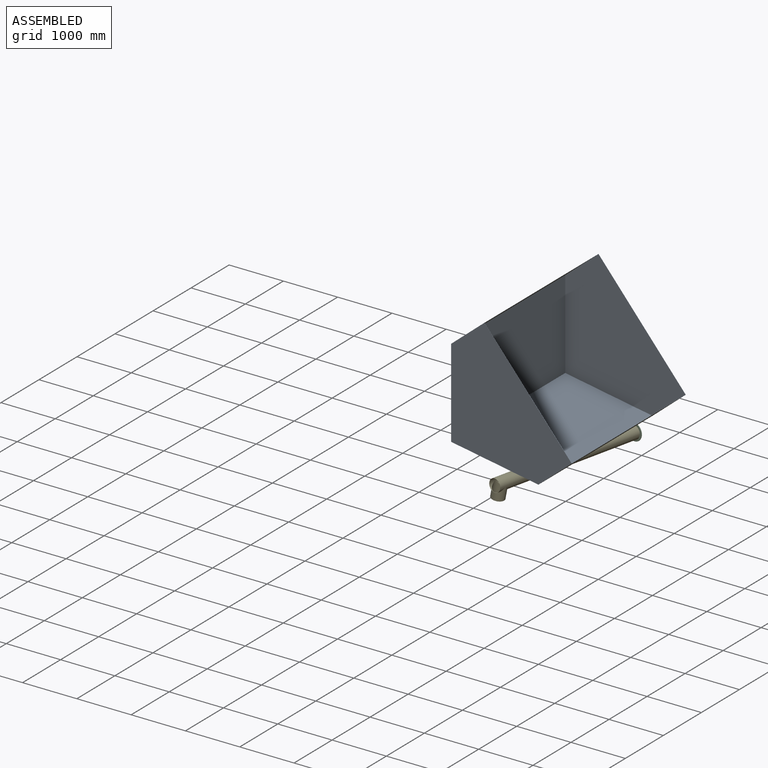
[diagram: assembled view]
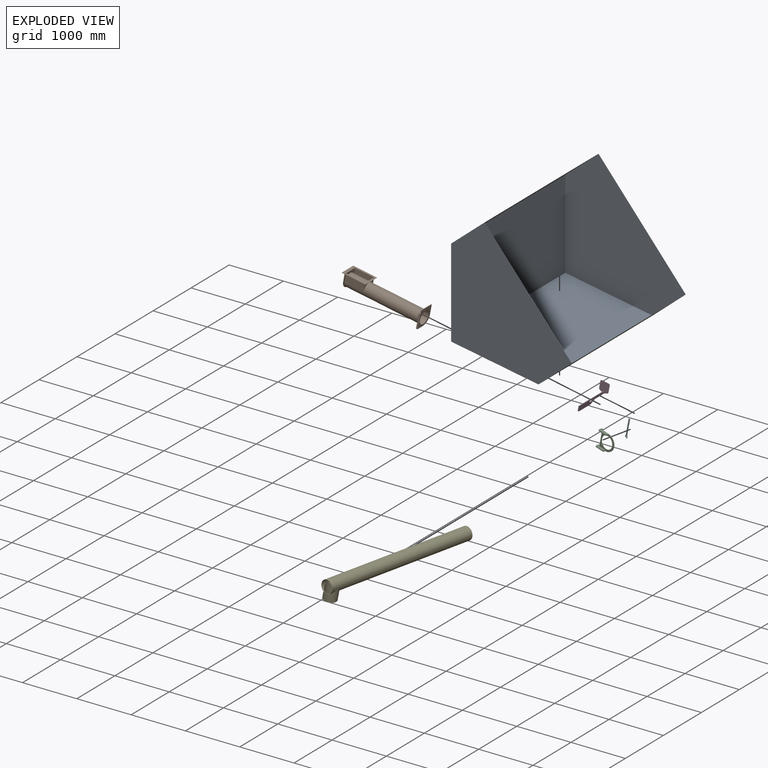
[diagram: exploded view]
GUIDED TOUR — MATED ASSEMBLY (Onshape document 6aad0ecdc5a5da9b1339add7, AutoMate assembly 6aad0ecdc5a5da9b1339add7_7d3fe150dd48b6e4a774384d_7fe9ff65d1b6e1fdf8e013a1_default)

This assembly has 6 components, labeled P0..P5 below (a component is one placed occurrence of a part; the same part can appear more than once), held together by 6 mates. A mate is a constraint between two components; its type names the relative motion it leaves free:
  BALL — leaves all rotation about the listed point free (a ball joint),
  FASTENED — locks the two components together rigidly (no relative motion),
  PARALLEL — keeps the two listed directions parallel,
  REVOLUTE — leaves rotation about the listed axis free (a hinge).
Axis/direction vectors are unit vectors and 'through' points are millimeter coordinates, both in the assembly's world frame.

MATES
  1. FASTENED "Fastened 1": P4 <-> P2, direction (0.171, 0.985, -0.033) through (939.24, -1520.71, -1131.61) mm
  2. PARALLEL "Parallel 1": P1 <-> P0, direction (0.000, 1.000, 0.000) through (802.22, -1192.31, -1018.96) mm
  3. BALL "Ball 1": P0 <-> P1, direction (1.000, 0.000, 0.000) through (-570.71, -1194.31, -685.99) mm
  4. FASTENED "Fastened 3": P3 <-> P1, direction (0.982, 0.000, -0.187) through (810.84, -1437.31, -941.70) mm
  5. FASTENED "Fastened 2": P5 <-> P2, direction (0.187, 0.000, 0.982) through (820.29, -1494.31, -956.23) mm
  6. REVOLUTE "Revolute 3": P2 <-> P1, axis (0.187, 0.000, 0.982) through (820.29, -1494.31, -956.23) mm

ASSEMBLY ORDER
  1. P5 — the base component [order verified]
  2. P2 [order verified]
  3. P3 [order verified]
  4. P0 [order verified]
  5. P1 [order verified]
  6. P4 [order verified]
Order-tag legend:
  [order verified] — this step's position reverses a verified removal order: the component was checked to insert without passing through the ones already placed.

Of the 6 components, 2 carry the full construction recipe — the FeatureScript program that regenerates the part's solid from scratch; the rest are supplied as boundary geometry only.
Each toured component is shown spotlighted twice — in the assembled view, then in the exploded view, where a leader line traces a displaced component back to its assembled socket (saturated green if recipe-attached, orange if geometry-only; every other component desaturated gray) — followed by its recipe or geometry summary and the mates that hold it.
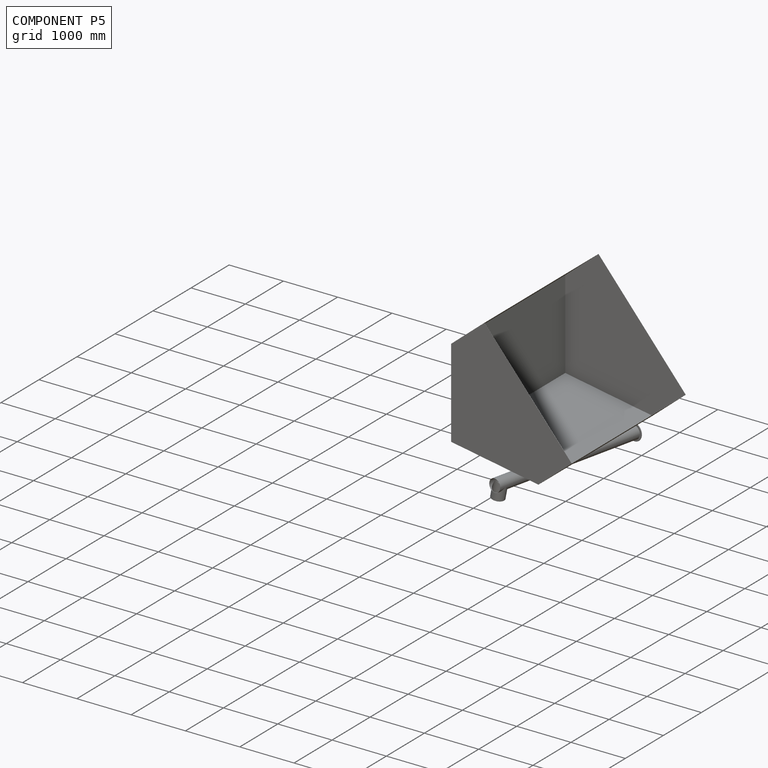
[diagram: component P5 — assembled]
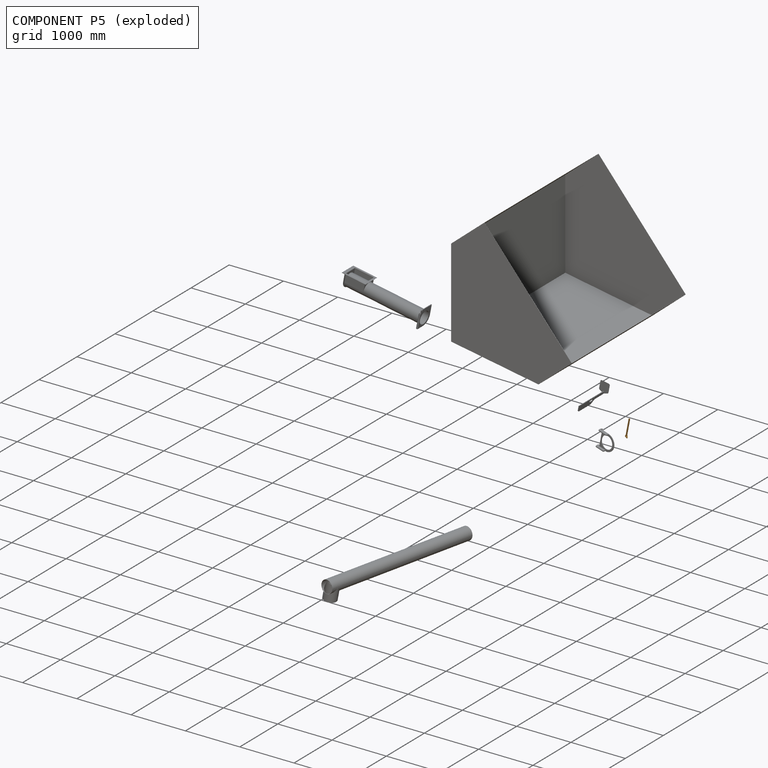
[diagram: component P5 — exploded]
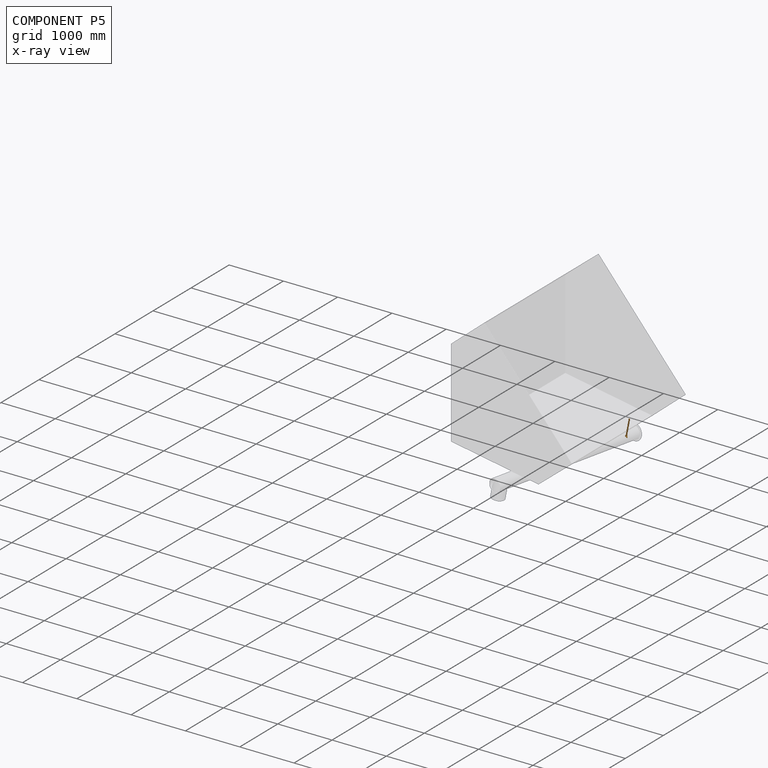
[diagram: component P5 — x-ray view]
COMPONENT P5 — geometry summary (no construction recipe available for this part):
  bounding box: 315.0 x 72.0 x 57.0 mm
  B-rep topology: 1 solid, 11 faces, 42 edges
  volume: 160328 mm^3 (12% of its bounding box)
Held by: FASTENED mate "Fastened 2" to P2.
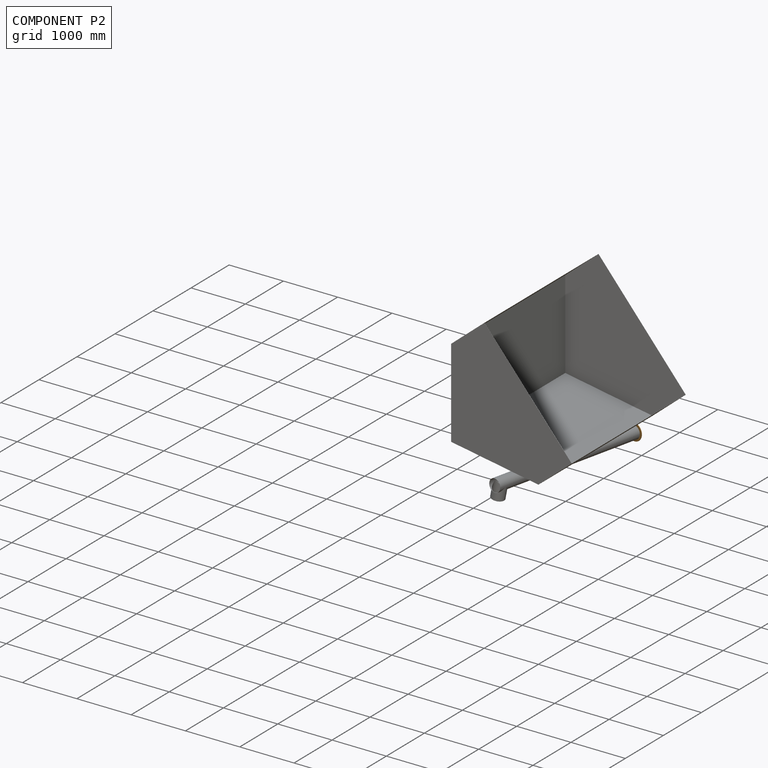
[diagram: component P2 — assembled]
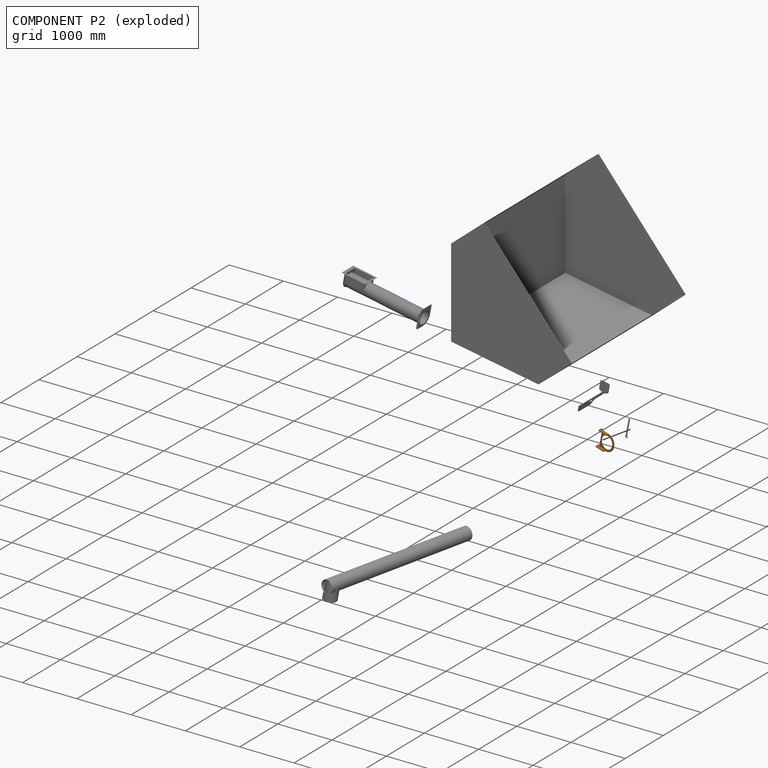
[diagram: component P2 — exploded]
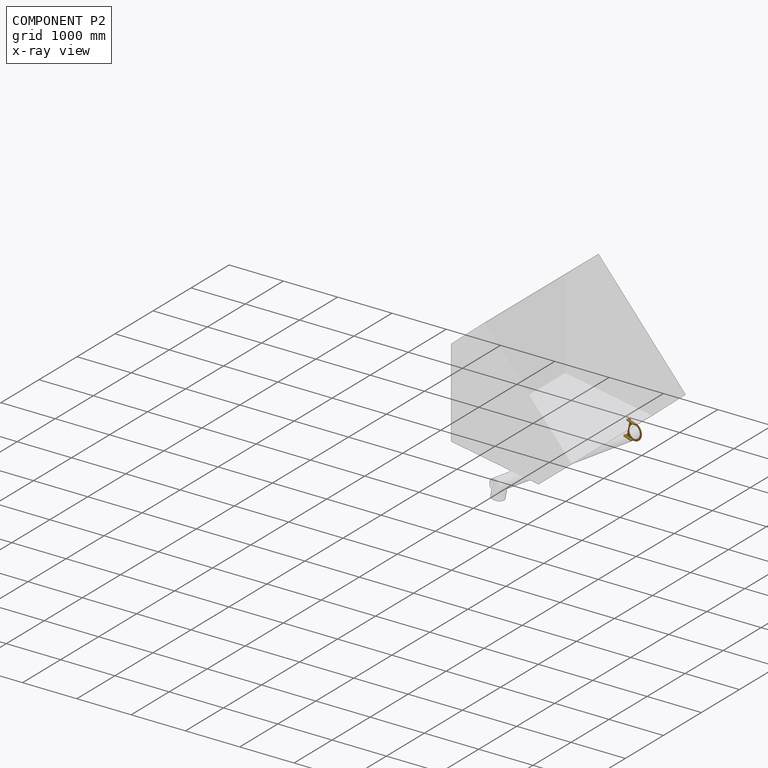
[diagram: component P2 — x-ray view]
COMPONENT P2 — geometry summary (no construction recipe available for this part):
  bounding box: 327.0 x 300.0 x 82.0 mm
  B-rep topology: 1 solid, 21 faces, 110 edges
  volume: 701181 mm^3 (9% of its bounding box)
Held by: FASTENED mate "Fastened 1" to P4; FASTENED mate "Fastened 2" to P5; REVOLUTE mate "Revolute 3" to P1.
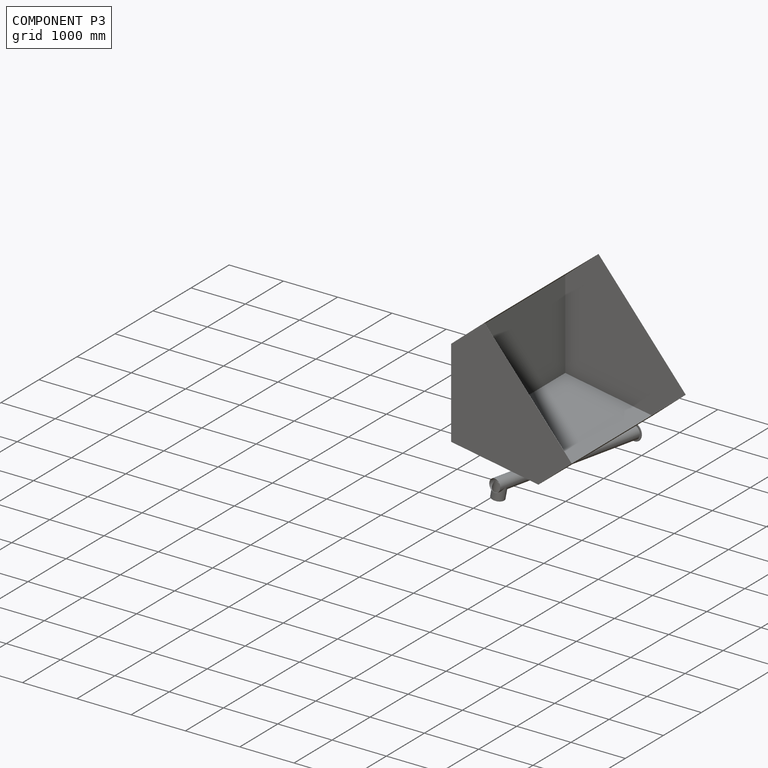
[diagram: component P3 — assembled]
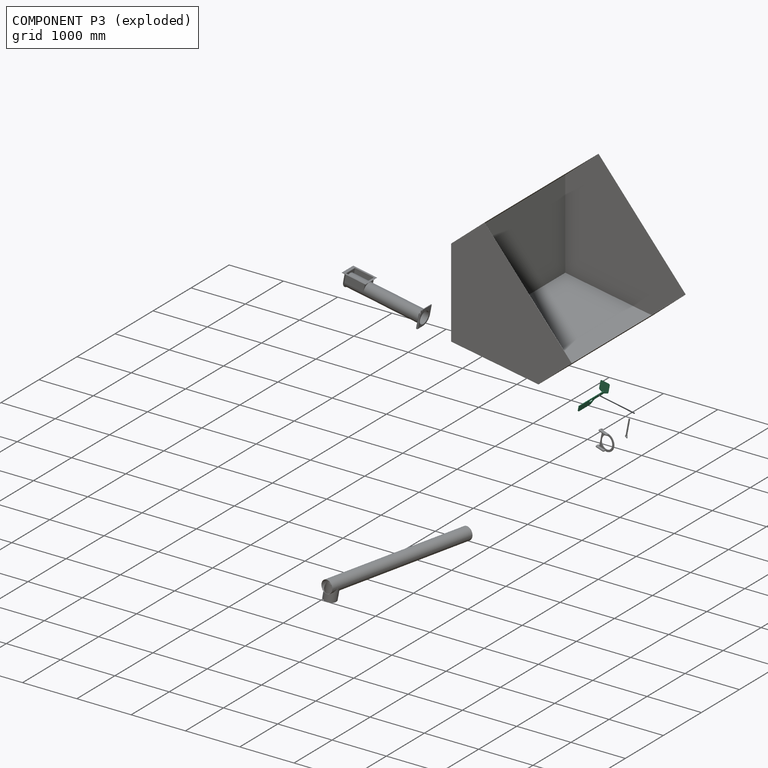
[diagram: component P3 — exploded]
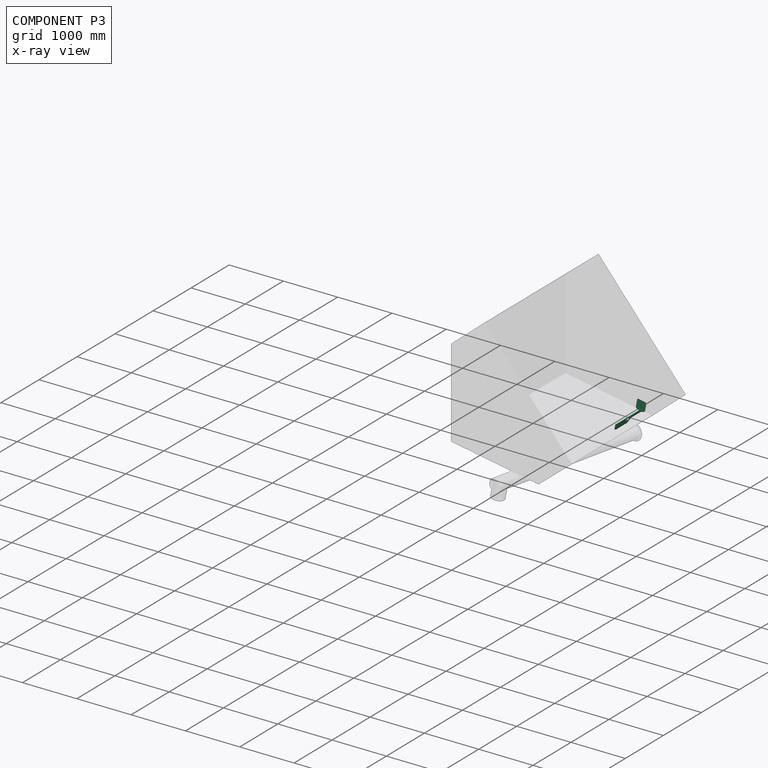
[diagram: component P3 — x-ray view]
COMPONENT P3 — recipe-attached (CADFS 00498886, mesh-verified: the recipe's output STEP matches this component's geometry to below the mesh-comparison resolution (tessellation chordal tolerance ~1.09 mm)).
Held by: FASTENED mate "Fastened 3" to P1.
Construction recipe (FeatureScript — the CAD program that rebuilds this solid; sketch coordinates are in the units given by the * unit suffixes, e.g. mm):

FeatureScript 1511;
import(path : "onshape/std/geometry.fs", version : "1511.0");
import(path : "onshape/std/common.fs", version : "1511.0");
const mm = millimeter;
const VERTEX = EntityType.VERTEX;
const EDGE = EntityType.EDGE;
const FACE = EntityType.FACE;
const BODY = EntityType.BODY;
function v(x, y){return vector(x, y);}
function OD(order){return orderDisambiguation(order);}
function OSD(set){return originalSetDisambiguation(set);}
function TD(topology){return topologyDisambiguation(topology);}
function TDD(query){return trueDependencyDisambiguation(query);}
function sQuery(a, b, c) {return sketchEntityQuery(a, b, c);}

annotation { "Feature Type Name" : "Feature", "Feature Type Description" : "" }
export const myFeature = defineFeature(function(context is Context, id is Id, definition is map)
    precondition{}
    {
        {
            var Q0;
            Q0=qCreatedBy(makeId("Front.planeOp"),FACE);
            var sketch = newSketch(context, id + "F0", { "sketchPlane" : qUnion([Q0])});
            skLineSegment(sketch, "E0.bottom", {"start": v(0, 0) * mm, "end": v(285, 0) * mm});
            skLineSegment(sketch, "E0.top", {"start": v(60, -45) * mm, "end": v(280, -45) * mm});
            skLineSegment(sketch, "E0.right", {"start": v(285, 0) * mm, "end": v(285, -40) * mm});
            skCircle(sketch, "E1", {"center": v(40, -17.5) * mm, "radius": 7 * mm});
            skCircle(sketch, "E2", {"center": v(260, -17.5) * mm, "radius": 7 * mm});
            skPoint(sketch, "E3.visualSharp", {"position": v(0, -45) * mm});
            skPoint(sketch, "E4.visualSharp", {"position": v(285, -45) * mm});
            skArc(sketch, "E4.filletArc", {"start": v(280, -45) * mm, "mid": v(283.54, -43.54) * mm, "end": v(285, -40) * mm});
            skLineSegment(sketch, "E5", {"start": v(47.5, -48.35) * mm, "end": v(-36.16, -96.65) * mm});
            skLineSegment(sketch, "E6", {"start": v(-48.66, -100) * mm, "end": v(-340, -100) * mm});
            skLineSegment(sketch, "E7", {"start": v(-365, -75) * mm, "end": v(-365, 0) * mm});
            skLineSegment(sketch, "E8", {"start": v(-365, 0) * mm, "end": v(0, 0) * mm});
            skPoint(sketch, "E9.visualSharp", {"position": v(-365, -100) * mm});
            skArc(sketch, "E9.filletArc", {"start": v(-365, -75) * mm, "mid": v(-357.68, -92.68) * mm, "end": v(-340, -100) * mm});
            skPoint(sketch, "E10.visualSharp", {"position": v(-41.96, -100) * mm});
            skArc(sketch, "E10.filletArc", {"start": v(-48.66, -100) * mm, "mid": v(-42.19, -99.15) * mm, "end": v(-36.16, -96.65) * mm});
            skPoint(sketch, "E11.visualSharp", {"position": v(53.3, -45) * mm});
            skArc(sketch, "E11.filletArc", {"start": v(60, -45) * mm, "mid": v(53.53, -45.85) * mm, "end": v(47.5, -48.35) * mm});
            skSolve(sketch);
        }
        {
            var Q0;
            Q0=makeQuery(id+"F0.imprint","IMPRINT",FACE,{"disambiguationData":[TD([[makeQuery(id+"F0.imprint","IMPRINT",EDGE,{"derivedFrom":sQuery(id+"F0.wireOp",EDGE,"E0.bottom")}),-1.0]])]});
            extrude(context, id + "F1", {"entities" : qUnion([Q0]), "depth" : 12 * mm});
        }
        {
            var Q0;
            Q0=makeQuery(id+"F1.opExtrude","CAP_FACE",FACE,{"disambiguationData":[OSD([sQuery(id+"F0.wireOp",EDGE,"E0.bottom"),sQuery(id+"F0.wireOp",EDGE,"E0.top"),sQuery(id+"F0.wireOp",EDGE,"E0.right"),sQuery(id+"F0.wireOp",EDGE,"E1"),sQuery(id+"F0.wireOp",EDGE,"E2"),sQuery(id+"F0.wireOp",EDGE,"E4.filletArc"),sQuery(id+"F0.wireOp",EDGE,"E5"),sQuery(id+"F0.wireOp",EDGE,"E6"),sQuery(id+"F0.wireOp",EDGE,"E7"),sQuery(id+"F0.wireOp",EDGE,"E8"),sQuery(id+"F0.wireOp",EDGE,"E9.filletArc"),sQuery(id+"F0.wireOp",EDGE,"E10.filletArc"),sQuery(id+"F0.wireOp",EDGE,"E11.filletArc")])],"isStart":true});
            var sketch = newSketch(context, id + "F2", { "sketchPlane" : qUnion([Q0])});
            skLineSegment(sketch, "E12.bottom", {"start": v(-3, -25) * mm, "end": v(82, -25) * mm});
            skLineSegment(sketch, "E12.top", {"start": v(-3, -50) * mm, "end": v(82, -50) * mm});
            skLineSegment(sketch, "E12.left", {"start": v(-3, -25) * mm, "end": v(-3, -50) * mm});
            skLineSegment(sketch, "E12.right", {"start": v(82, -25) * mm, "end": v(82, -50) * mm});
            skSolve(sketch);
        }
        {
            var Q0;
            Q0=makeQuery(id+"F2.imprint","IMPRINT",FACE,{"disambiguationData":[TD([[makeQuery(id+"F2.imprint","IMPRINT",EDGE,{"derivedFrom":sQuery(id+"F2.wireOp",EDGE,"E12.bottom")}),-1.0]])]});
            extrude(context, id + "F3", {"entities" : qUnion([Q0]), "operationType" : NewBodyOperationType.REMOVE, "oppositeDirection" : true, "depth" : 25 * mm});
        }
        {
            var Q0;
            Q0=makeQuery(id+"F1.opExtrude","SWEPT_FACE",FACE,{"disambiguationData":[OSD([sQuery(id+"F0.wireOp",EDGE,"E0.right")])]});
            var sketch = newSketch(context, id + "F4", { "sketchPlane" : qUnion([Q0])});
            skLineSegment(sketch, "E13", {"start": v(-6, 0) * mm, "end": v(-6, 45.53) * mm, "construction": true});
            skLineSegment(sketch, "E14", {"start": v(-6, -40) * mm, "end": v(-12, -40) * mm});
            skLineSegment(sketch, "E15", {"start": v(-12, -40) * mm, "end": v(-78.83, -6.89) * mm});
            skLineSegment(sketch, "E16", {"start": v(-92.73, 15.51) * mm, "end": v(-92.73, 138.93) * mm});
            skLineSegment(sketch, "E17", {"start": v(-67.73, 163.93) * mm, "end": v(0, 163.93) * mm});
            skPoint(sketch, "E18.visualSharp", {"position": v(-92.73, 163.93) * mm});
            skArc(sketch, "E18.filletArc", {"start": v(-67.73, 163.93) * mm, "mid": v(-85.4, 156.6) * mm, "end": v(-92.73, 138.93) * mm});
            skPoint(sketch, "E19.visualSharp", {"position": v(-92.73, 0) * mm});
            skArc(sketch, "E19.filletArc", {"start": v(-92.73, 15.51) * mm, "mid": v(-88.97, 2.33) * mm, "end": v(-78.83, -6.89) * mm});
            skArc(sketch, "E20.MirrorCS", {"start": v(80.73, 15.51) * mm, "mid": v(76.97, 2.33) * mm, "end": v(66.83, -6.89) * mm});
            skLineSegment(sketch, "E21.MirrorCS", {"start": v(-6, -40) * mm, "end": v(0, -40) * mm});
            skArc(sketch, "E22.MirrorCS", {"start": v(55.73, 163.93) * mm, "mid": v(73.4, 156.6) * mm, "end": v(80.73, 138.93) * mm});
            skLineSegment(sketch, "E23.MirrorCS", {"start": v(55.73, 163.93) * mm, "end": v(-12, 163.93) * mm});
            skLineSegment(sketch, "E24.MirrorCS", {"start": v(0, -40) * mm, "end": v(66.83, -6.89) * mm});
            skPoint(sketch, "E25.MirrorP", {"position": v(80.73, 0) * mm});
            skLineSegment(sketch, "E26.MirrorCS", {"start": v(80.73, 15.51) * mm, "end": v(80.73, 138.93) * mm});
            skPoint(sketch, "E27.MirrorP", {"position": v(80.73, 163.93) * mm});
            skSolve(sketch);
        }
        {
            var Q0;
            Q0 = qSketchRegion(id + "F4", true);
            extrude(context, id + "F5", {"entities" : qUnion([Q0]), "operationType" : NewBodyOperationType.ADD, "depth" : 3 * mm});
        }
    });
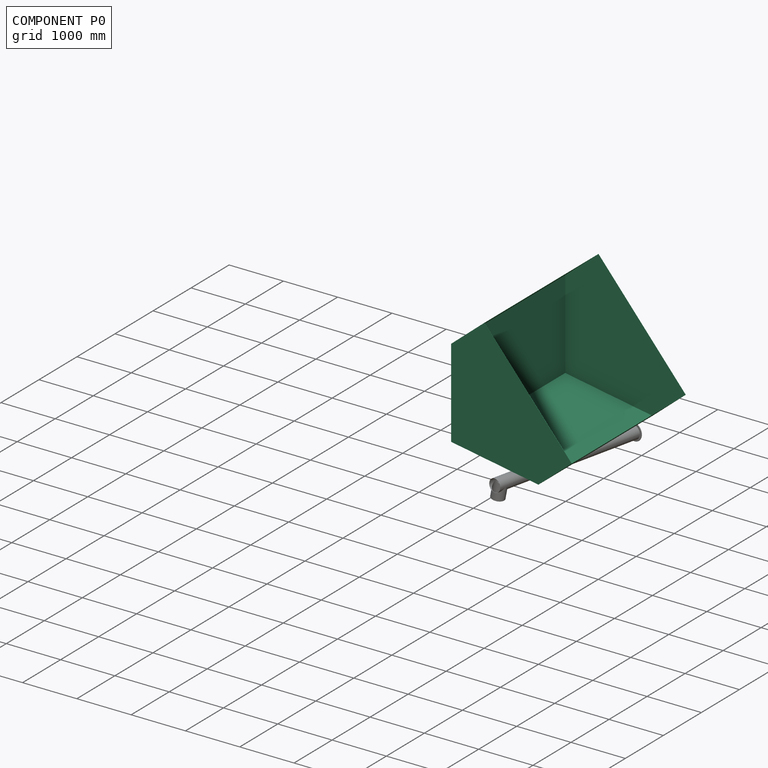
[diagram: component P0 — assembled]
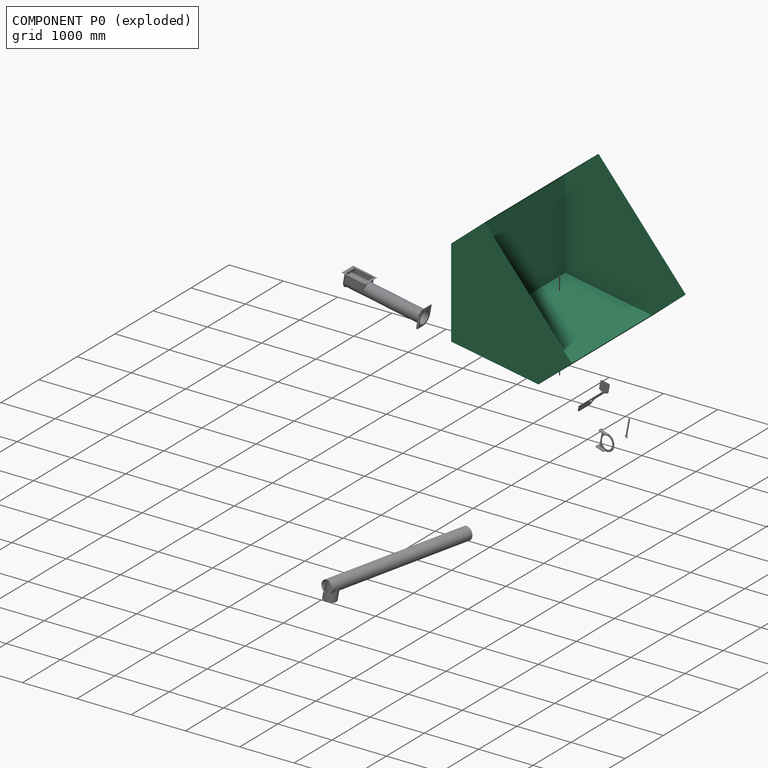
[diagram: component P0 — exploded]
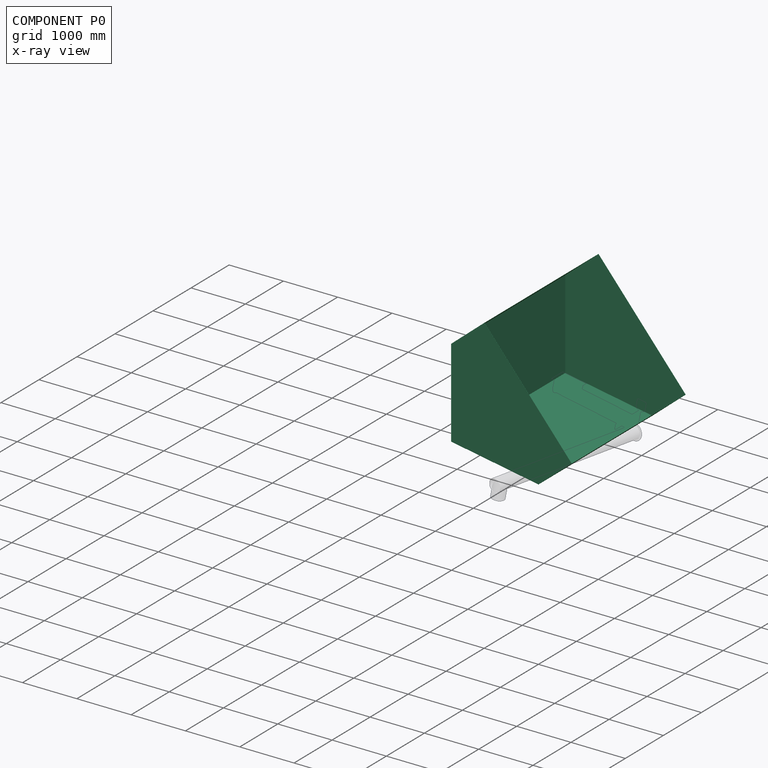
[diagram: component P0 — x-ray view]
COMPONENT P0 — recipe-attached (CADFS 00498885, mesh-verified: the recipe's output STEP matches this component's geometry to below the mesh-comparison resolution (tessellation chordal tolerance ~6.56 mm)).
Held by: PARALLEL mate "Parallel 1" to P1; BALL mate "Ball 1" to P1.
Construction recipe (FeatureScript — the CAD program that rebuilds this solid; sketch coordinates are in the units given by the * unit suffixes, e.g. mm):

FeatureScript 1511;
import(path : "onshape/std/geometry.fs", version : "1511.0");
import(path : "onshape/std/common.fs", version : "1511.0");
const mm = millimeter;
const VERTEX = EntityType.VERTEX;
const EDGE = EntityType.EDGE;
const FACE = EntityType.FACE;
const BODY = EntityType.BODY;
function v(x, y){return vector(x, y);}
function OD(order){return orderDisambiguation(order);}
function OSD(set){return originalSetDisambiguation(set);}
function TD(topology){return topologyDisambiguation(topology);}
function TDD(query){return trueDependencyDisambiguation(query);}
function sQuery(a, b, c) {return sketchEntityQuery(a, b, c);}

annotation { "Feature Type Name" : "Feature", "Feature Type Description" : "" }
export const myFeature = defineFeature(function(context is Context, id is Id, definition is map)
    precondition{}
    {
        {
            var Q0;
            Q0=qCreatedBy(makeId("Front.planeOp"),FACE);
            var sketch = newSketch(context, id + "F0", { "sketchPlane" : qUnion([Q0])});
            skLineSegment(sketch, "E0", {"start": v(0, 0) * mm, "end": v(1250, 1048.87) * mm});
            skLineSegment(sketch, "E1", {"start": v(1250, 1048.87) * mm, "end": v(1250, 1848.87) * mm});
            skLineSegment(sketch, "E2", {"start": v(1250, 1848.87) * mm, "end": v(0, 1848.87) * mm});
            skLineSegment(sketch, "E3", {"start": v(0, 0) * mm, "end": v(0, 1266.69) * mm, "construction": true});
            skLineSegment(sketch, "E4.MirrorCS", {"start": v(0, 0) * mm, "end": v(-1250, 1048.87) * mm});
            skLineSegment(sketch, "E5.MirrorCS", {"start": v(-1250, 1048.87) * mm, "end": v(-1250, 1848.87) * mm});
            skLineSegment(sketch, "E6.MirrorCS", {"start": v(-1250, 1848.87) * mm, "end": v(0, 1848.87) * mm});
            skSolve(sketch);
        }
        {
            var Q0;
            Q0 = qSketchRegion(id + "F0", true);
            extrude(context, id + "F1", {"entities" : qUnion([Q0]), "depth" : 3000 * mm});
        }
        {
            var Q0;
            Q0=makeQuery(id+"F1.opExtrude","SWEPT_FACE",FACE,{"disambiguationData":[OSD([sQuery(id+"F0.wireOp",EDGE,"E2"),sQuery(id+"F0.wireOp",EDGE,"E6.MirrorCS")])]});
            shell(context, id + "F2", {"entities" : qUnion([Q0]), "thickness" : 2.5 * mm});
        }
        {
            var Q0;
            Q0=makeQuery(id+"F1.opExtrude","SWEPT_FACE",FACE,{"disambiguationData":[OSD([sQuery(id+"F0.wireOp",EDGE,"E4.MirrorCS")])]});
            var sketch = newSketch(context, id + "F3", { "sketchPlane" : qUnion([Q0])});
            skLineSegment(sketch, "E7", {"start": v(-135, 0) * mm, "end": v(-135, -45) * mm});
            skLineSegment(sketch, "E8", {"start": v(-130, -50) * mm, "end": v(30, -50) * mm});
            skLineSegment(sketch, "E9", {"start": v(50, -30) * mm, "end": v(50, 346) * mm});
            skLineSegment(sketch, "E10", {"start": v(45, 351) * mm, "end": v(0, 351) * mm});
            skLineSegment(sketch, "E11", {"start": v(0, 351) * mm, "end": v(0, 301) * mm});
            skLineSegment(sketch, "E12", {"start": v(0, 301) * mm, "end": v(6, 301) * mm});
            skLineSegment(sketch, "E13", {"start": v(6, 301) * mm, "end": v(6, 0) * mm});
            skLineSegment(sketch, "E14", {"start": v(6, 0) * mm, "end": v(-135, 0) * mm});
            skPoint(sketch, "E15.visualSharp", {"position": v(-135, -50) * mm});
            skArc(sketch, "E15.filletArc", {"start": v(-135, -45) * mm, "mid": v(-133.54, -48.54) * mm, "end": v(-130, -50) * mm});
            skPoint(sketch, "E16.visualSharp", {"position": v(50, -50) * mm});
            skArc(sketch, "E16.filletArc", {"start": v(30, -50) * mm, "mid": v(44.14, -44.14) * mm, "end": v(50, -30) * mm});
            skPoint(sketch, "E17.visualSharp", {"position": v(50, 351) * mm});
            skArc(sketch, "E17.filletArc", {"start": v(50, 346) * mm, "mid": v(48.54, 349.54) * mm, "end": v(45, 351) * mm});
            skSolve(sketch);
        }
        {
            var Q0;
            Q0 = qSketchRegion(id + "F3", true);
            extrude(context, id + "F4", {"entities" : qUnion([Q0]), "operationType" : NewBodyOperationType.ADD, "depth" : 5 * mm, "hasSecondDirection" : true, "secondDirectionOppositeDirection" : true, "secondDirectionDepth" : 1 * mm});
        }
    });
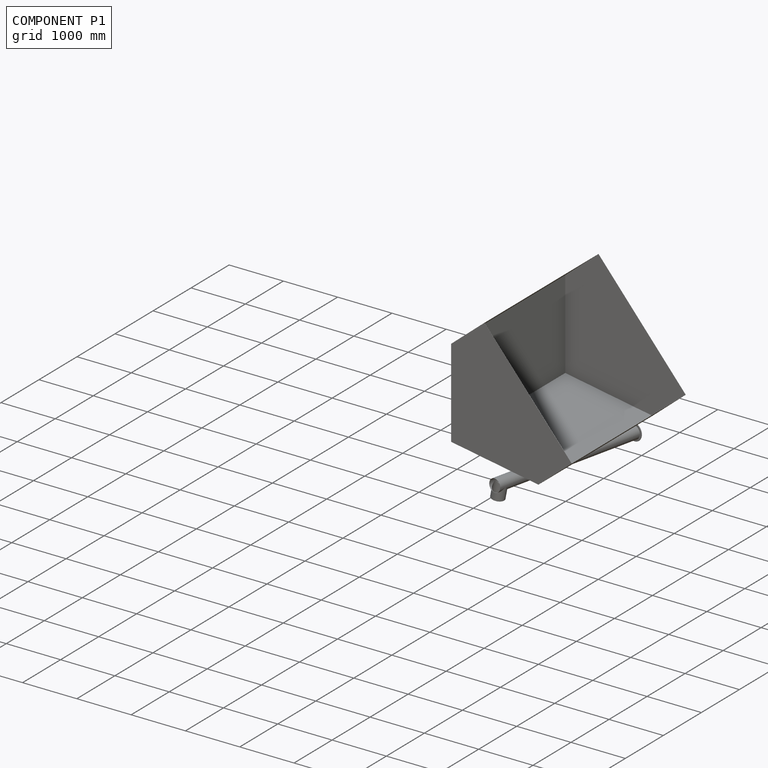
[diagram: component P1 — assembled]
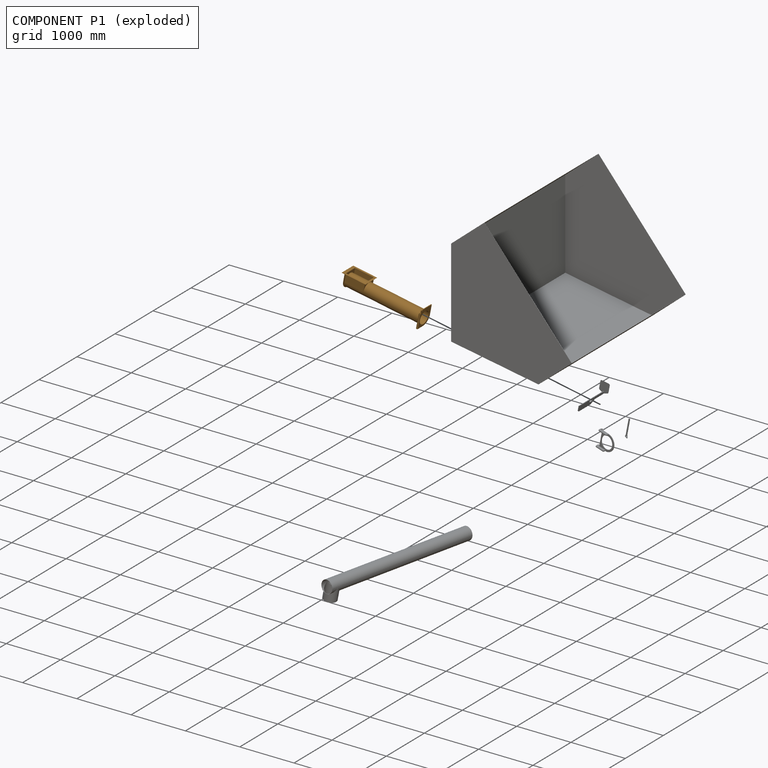
[diagram: component P1 — exploded]
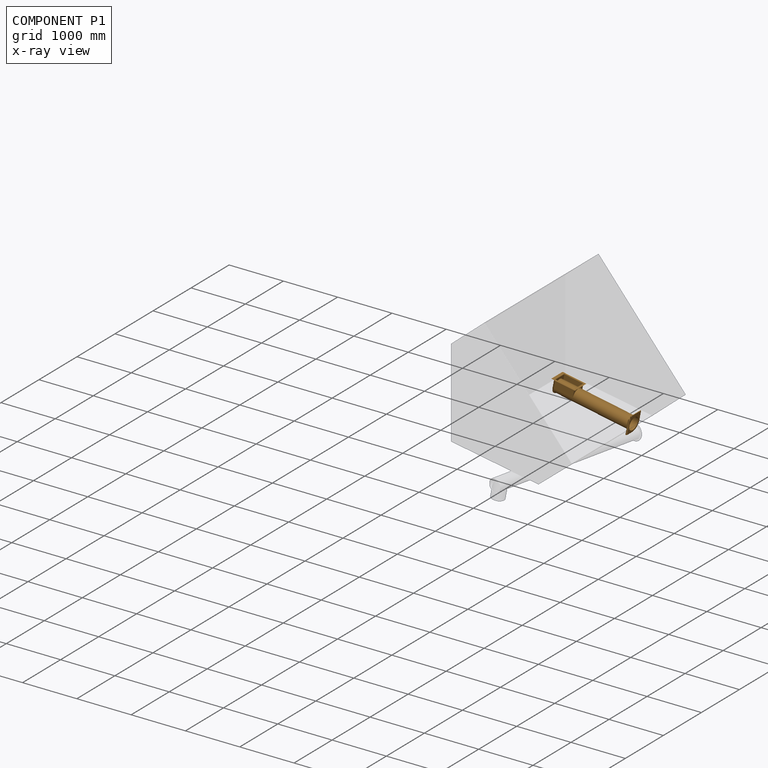
[diagram: component P1 — x-ray view]
COMPONENT P1 — geometry summary (no construction recipe available for this part):
  bounding box: 1484.5 x 325.0 x 321.6 mm
  B-rep topology: 1 solid, 48 faces, 276 edges
  volume: 3716813 mm^3 (2% of its bounding box)
Held by: PARALLEL mate "Parallel 1" to P0; BALL mate "Ball 1" to P0; FASTENED mate "Fastened 3" to P3; REVOLUTE mate "Revolute 3" to P2.
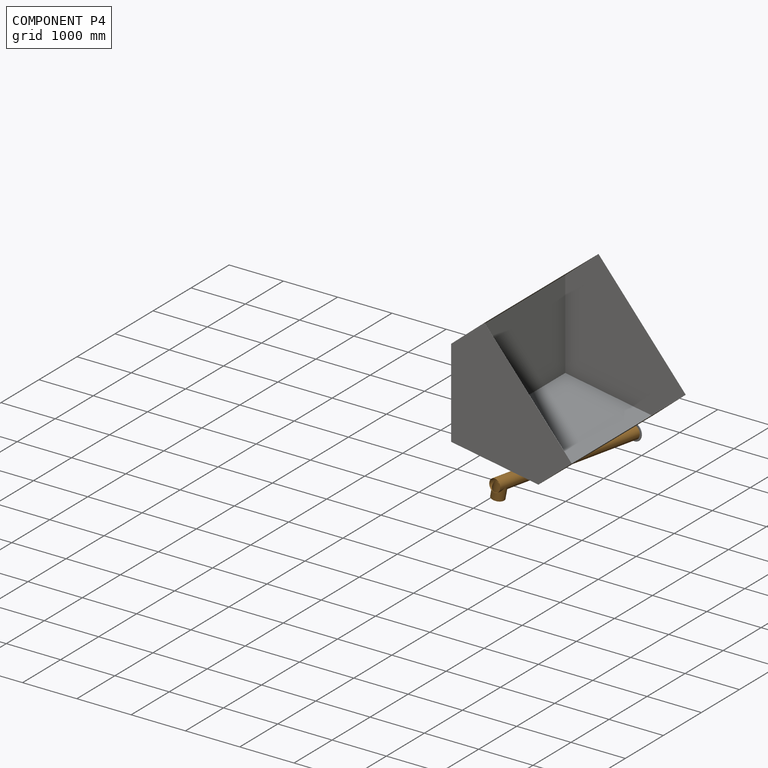
[diagram: component P4 — assembled]
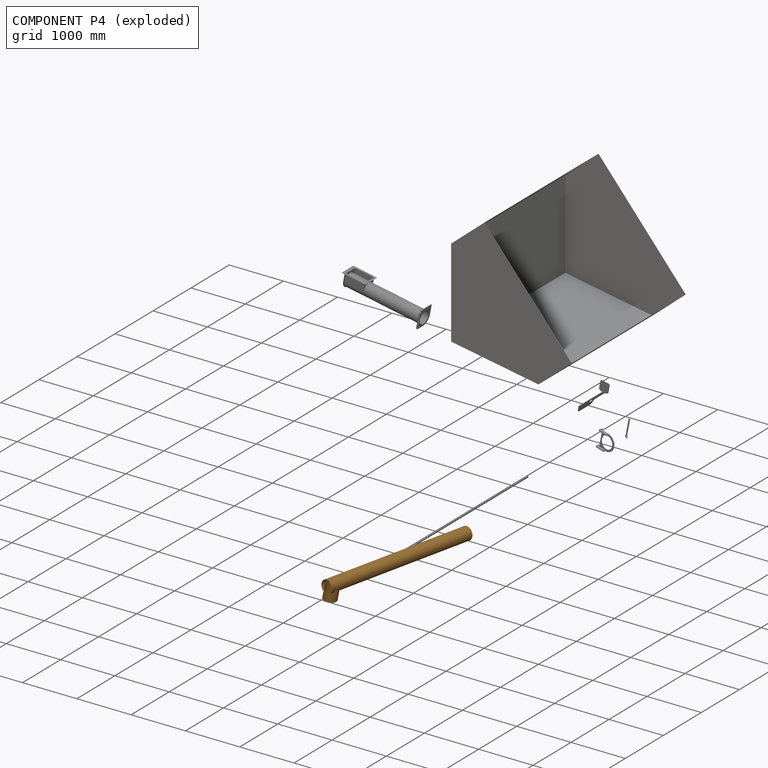
[diagram: component P4 — exploded]
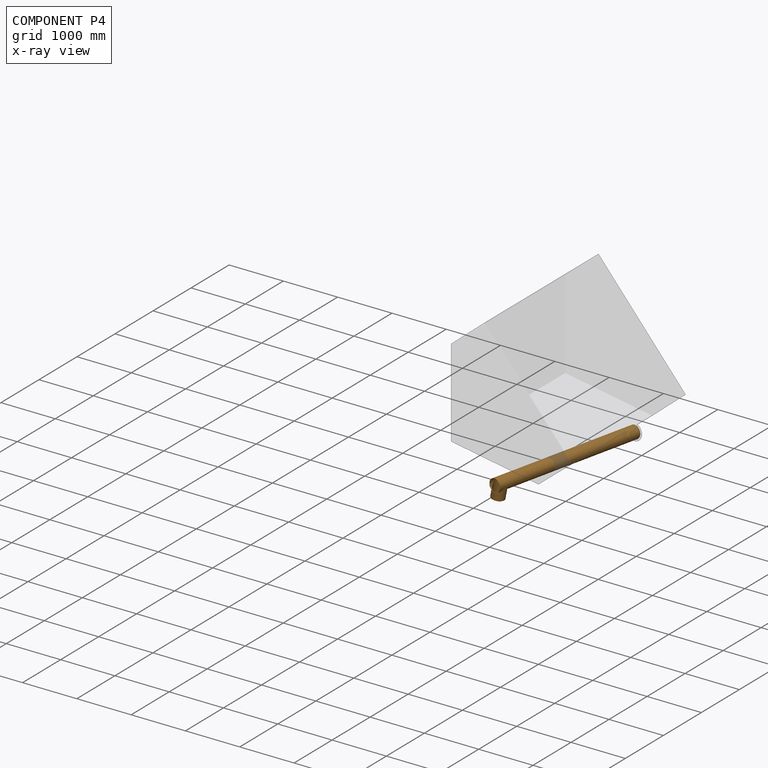
[diagram: component P4 — x-ray view]
COMPONENT P4 — geometry summary (no construction recipe available for this part):
  bounding box: 3000.0 x 367.1 x 235.0 mm
  B-rep topology: 1 solid, 9 faces, 46 edges
  volume: 4802179 mm^3 (2% of its bounding box)
  symmetry: mirror-symmetric across its x mid-plane
Held by: FASTENED mate "Fastened 1" to P2.
PROVENANCE & LICENSES
Assembly (occurrences, transforms, mates, per-part STEP geometry): AutoMate dataset, Zenodo record 7776208, CC0.
Construction recipes: CADFS (HuggingFace VladPyatov/CADFS, CC-BY-4.0, layered over the ABC dataset), FeatureScript reconstruction programs keyed by ABC model id.
Join: ABC meta listings map ABC model id -> Onshape documentId; within a shared document, parts are matched by geometric signature (bounding-box dims + volume at 0.1% relative tolerance, exact B-rep face/solid counts).
Verification: 2 of this assembly's 6 components carry a recipe attachment, and every attachment is mesh-verified: the CADFS STEP and the AutoMate member STEP were compared as meshes in their shared local frame (symmetric sampled-point-to-mesh distance); worst across the 2 attachments: below the mesh-comparison resolution (tessellation chordal tolerance ~6.56 mm) on a 4371 mm part.
Renders: orthographic iso camera (az 35 / el 25); the floor grid conveys scale (grid pitch printed in each image; no ruler). In the exploded view each component is displaced by its stored offset vector: the offsets alone carry the explosion direction (mate normal/axis signs are not orientation cues and do not encode it), and separation distances are assigned per mate-chain, not proportionally to assembly-order depth.
